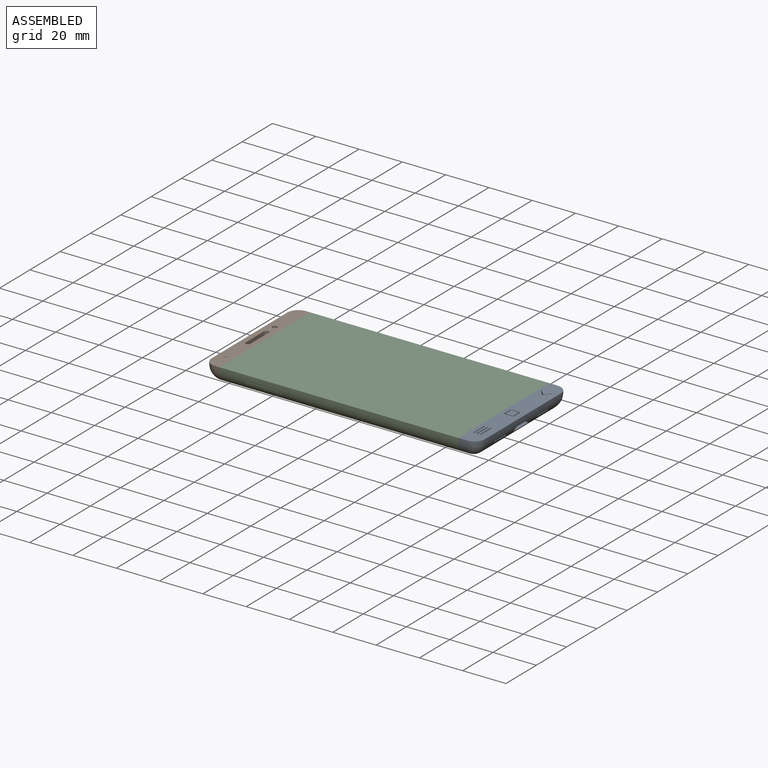
[diagram: assembled view]
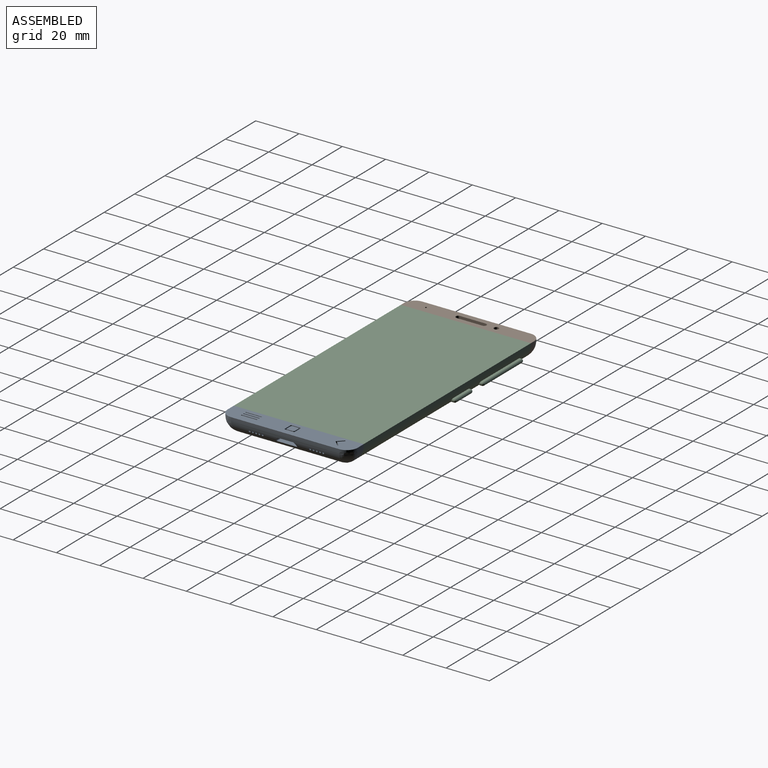
[diagram: assembled view, second angle]
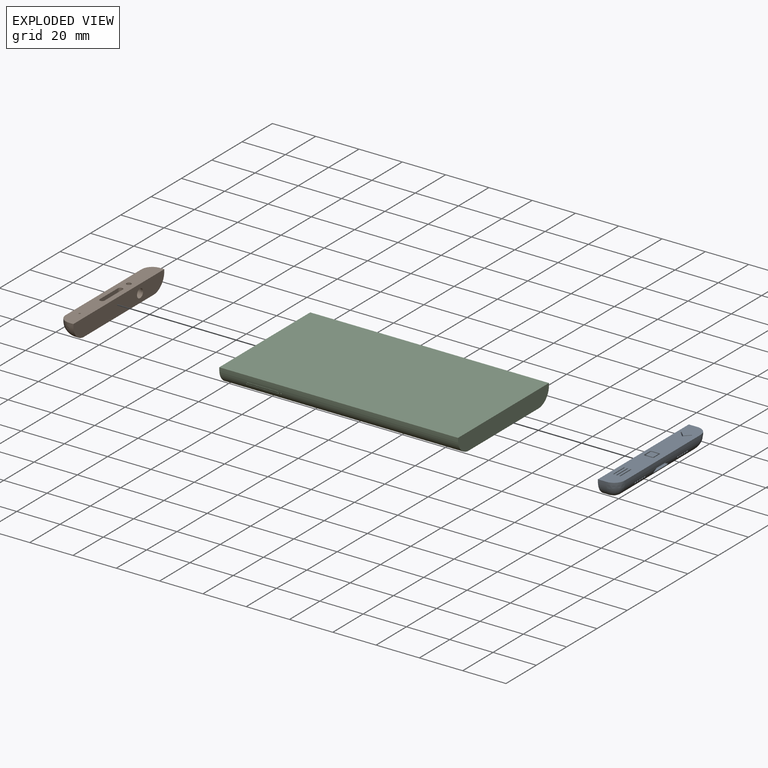
[diagram: exploded view]
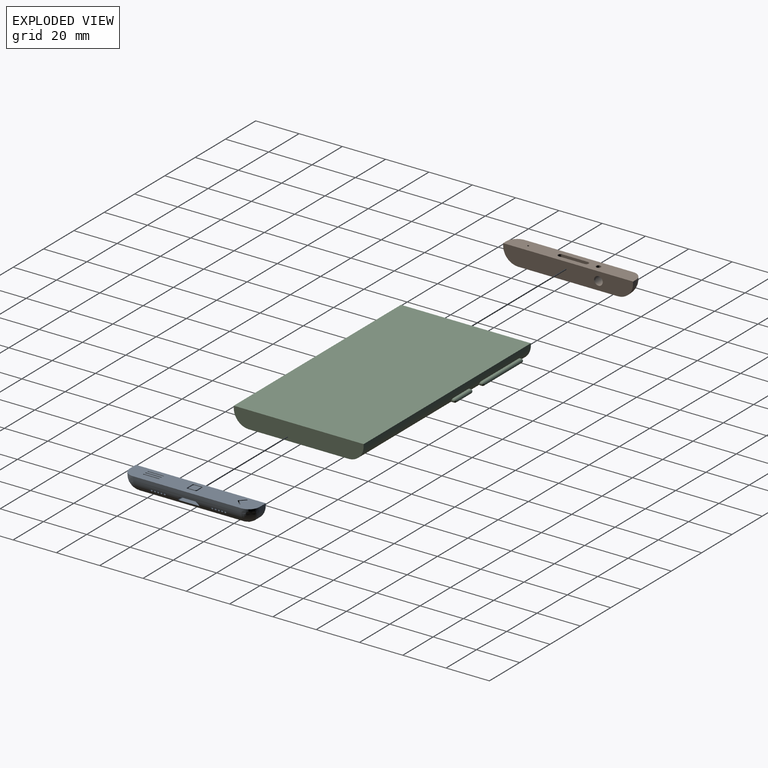
[diagram: exploded view, second angle]
ASSEMBLY  parts=3 mates=2
PART A: 86 faces, bbox 9x60x8.5 mm
  f0: plane 60x9mm, normal (0,0,1), area 494.3mm2, adj f35,f36,f37,f41,f43,f45,f46,f47
  f1: plane 8.91x1.3mm, normal (1,0,0), area 10.6mm2, adj f8,f10,f11,f12
  f2: plane 1x1mm, normal (1,0,0), area 0.8mm2, adj f18
  f3: plane 1x1mm, normal (1,0,0), area 0.8mm2, adj f19
  f4: plane 1x1mm, normal (1,0,0), area 0.8mm2, adj f20
  f5: plane 1x1mm, normal (1,0,0), area 0.8mm2, adj f21
  f6: plane 1x1mm, normal (1,0,0), area 0.8mm2, adj f22
  f7: sphere r=0.35mm, area 0.2mm2, adj f8,f12,f23
  f8: cylinder r=0.35mm len=8.91mm, axis (0,1,0), area 4.9mm2, adj f1,f7,f9,f24
  f9: sphere r=0.35mm, area 0.4mm2, adj f8,f10,f25
  f10: bspline ~2.06x1.6mm, area 1mm2, adj f1,f9,f11,f26
  f11: cylinder r=0.35mm len=7mm, axis (0,-1,0), area 3.8mm2, adj f1,f10,f12,f27
  f12: bspline ~2.06x1.6mm, area 1mm2, adj f1,f7,f11,f28
  f13: plane 1x1mm, normal (1,0,0), area 0.8mm2, adj f29
  f14: plane 1x1mm, normal (1,0,0), area 0.8mm2, adj f30
  f15: plane 1x1mm, normal (1,0,0), area 0.8mm2, adj f31
  f16: plane 1x1mm, normal (1,0,0), area 0.8mm2, adj f32
  f17: plane 1x1mm, normal (1,0,0), area 0.8mm2, adj f33
  f18: cylinder r=0.5mm len=2.54mm, axis (1,0,0), area 7.2mm2, adj f2,f34
  f19: cylinder r=0.5mm len=2.54mm, axis (1,0,0), area 7.2mm2, adj f3,f34
  f20: cylinder r=0.5mm len=2.54mm, axis (1,0,0), area 7.2mm2, adj f4,f34
  f21: cylinder r=0.5mm len=2.54mm, axis (1,0,0), area 7.2mm2, adj f5,f34
  f22: cylinder r=0.5mm len=2.54mm, axis (1,0,0), area 7.2mm2, adj f6,f34
  f23: cylinder r=0.35mm len=4.71mm, axis (1,0,0), area 3.2mm2, adj f7,f24,f28,f34
  f24: plane 8.91x4.39mm, normal (0,0,1), area 39.2mm2, adj f8,f23,f25,f34
  f25: cylinder r=0.35mm len=4.71mm, axis (1,0,0), area 3.2mm2, adj f9,f24,f26,f34
  f26: extruded ~5.36x1.5mm, area 10.4mm2, adj f10,f25,f27,f34
  f27: plane 7x5.36mm, normal (0,0,-1), area 37.5mm2, adj f11,f26,f28,f34
  f28: extruded ~5.36x1.5mm, area 10.4mm2, adj f12,f23,f27,f34
  f29: cylinder r=0.5mm len=2.54mm, axis (1,0,0), area 7.2mm2, adj f13,f34
  f30: cylinder r=0.5mm len=2.54mm, axis (1,0,0), area 7.2mm2, adj f14,f34
  f31: cylinder r=0.5mm len=2.54mm, axis (1,0,0), area 7.2mm2, adj f15,f34
  f32: cylinder r=0.5mm len=2.54mm, axis (1,0,0), area 7.2mm2, adj f16,f34
  f33: cylinder r=0.5mm len=2.54mm, axis (1,0,0), area 7.2mm2, adj f17,f34
  f34: cylinder r=7mm len=50mm, axis (0,1,0), area 506.1mm2, adj f18,f19,f20,f21,f22,f23,f24,f25
  f35: cylinder r=5mm len=5mm, axis (0,0,-1), area 7.9mm2, adj f0,f36,f38,f41
  f36: plane 50x1mm, normal (1,0,0), area 50mm2, adj f0,f34,f35,f37
  f37: cylinder r=5mm len=5mm, axis (0,0,-1), area 7.9mm2, adj f0,f36,f39,f43
  f38: bspline ~8.55x7mm, area 56.6mm2, adj f34,f35,f40
  f39: bspline ~8.55x7mm, area 56.6mm2, adj f34,f37,f42
  f40: cylinder r=7mm len=7mm, axis (-1,0,0), area 36mm2, adj f38,f41,f44,f45
  f41: plane 4x1mm, normal (0,1,0), area 4mm2, adj f0,f35,f40,f45
  f42: cylinder r=7mm len=7mm, axis (1,0,0), area 36mm2, adj f39,f43,f44,f45
  f43: plane 4x1mm, normal (0,-1,0), area 4mm2, adj f0,f37,f42,f45
  f44: plane 46x2mm, normal (0,0,-1), area 92mm2, adj f34,f40,f42,f45
  f45: plane 60x8mm, normal (-1,0,0), area 459mm2, adj f0,f40,f41,f42,f43,f44
  f46: cylinder r=0.22mm len=2mm, axis (0,0,1), area 1.4mm2, adj f0,f47,f49,f50
  f47: plane 7x2mm, normal (1,0,0), area 14mm2, adj f0,f46,f48,f50
  f48: cylinder r=0.22mm len=2mm, axis (0,0,1), area 1.4mm2, adj f0,f47,f49,f50
  f49: plane 7x2mm, normal (-1,0,0), area 14mm2, adj f0,f46,f48,f50
  f50: plane 7.44x0.44mm, normal (0,0,1), area 3.3mm2, adj f46,f47,f48,f49
  f51: cylinder r=0.25mm len=2mm, axis (0,0,1), area 1.6mm2, adj f0,f52,f54,f55
  f52: plane 7x2mm, normal (1,0,0), area 14mm2, adj f0,f51,f53,f55
  f53: cylinder r=0.25mm len=2mm, axis (0,0,1), area 1.6mm2, adj f0,f52,f54,f55
  f54: plane 7x2mm, normal (-1,0,0), area 14mm2, adj f0,f51,f53,f55
  f55: plane 7.5x0.5mm, normal (0,0,1), area 3.7mm2, adj f51,f52,f53,f54
  f56: cylinder r=0.25mm len=2mm, axis (0,0,1), area 1.6mm2, adj f0,f57,f59,f60
  f57: plane 7x2mm, normal (1,0,0), area 14mm2, adj f0,f56,f58,f60
  f58: cylinder r=0.25mm len=2mm, axis (0,0,1), area 1.6mm2, adj f0,f57,f59,f60
  f59: plane 7x2mm, normal (-1,0,0), area 14mm2, adj f0,f56,f58,f60
  f60: plane 7.5x0.5mm, normal (0,0,1), area 3.7mm2, adj f56,f57,f58,f59
  f61: cylinder r=0.22mm len=2mm, axis (0,0,1), area 1.4mm2, adj f0,f62,f66,f67
  f62: plane 2.54x2.54mm, normal (0.71,0.71,0), area 7.2mm2, adj f0,f61,f63,f67
  f63: plane 2.54x2.54mm, normal (-0.71,0.71,0), area 7.2mm2, adj f0,f62,f64,f67
  f64: cylinder r=0.22mm len=2mm, axis (0,0,1), area 1.4mm2, adj f0,f63,f65,f67
  f65: plane 2.23x2.23mm, normal (0.71,-0.71,0), area 6.3mm2, adj f0,f64,f66,f67
  f66: plane 2.23x2.23mm, normal (-0.71,-0.71,0), area 6.3mm2, adj f0,f61,f65,f67
  f67: plane 5.22x2.92mm, normal (0,0,1), area 3.2mm2, adj f61,f62,f63,f64,f65,f66
  f68: plane 3.55x2mm, normal (0,-1,0), area 7.1mm2, adj f0,f69,f83,f84
  f69: cylinder r=0.5mm len=2mm, axis (0,0,1), area 1.6mm2, adj f0,f68,f70,f84
  f70: plane 3.71x2mm, normal (1,0,0), area 7.4mm2, adj f0,f69,f71,f84
  f71: cylinder r=0.5mm len=2mm, axis (0,0,1), area 1.6mm2, adj f0,f70,f72,f84
  f72: plane 3.55x2mm, normal (0,1,0), area 7.1mm2, adj f0,f71,f73,f84
  f73: cylinder r=0.5mm len=2mm, axis (0,0,1), area 1.6mm2, adj f0,f72,f74,f84
  f74: plane 3.71x2mm, normal (-1,0,0), area 7.4mm2, adj f0,f73,f83,f84
  f75: cylinder r=0.5mm len=2mm, axis (0,0,1), area 1.6mm2, adj f76,f82,f84,f85
  f76: plane 2.71x2mm, normal (-1,0,0), area 5.4mm2, adj f75,f77,f84,f85
  f77: cylinder r=0.5mm len=2mm, axis (0,0,1), area 1.6mm2, adj f76,f78,f84,f85
  f78: plane 2.55x2mm, normal (0,1,0), area 5.1mm2, adj f77,f79,f84,f85
  f79: cylinder r=0.5mm len=2mm, axis (0,0,1), area 1.6mm2, adj f78,f80,f84,f85
  f80: plane 2.71x2mm, normal (1,0,0), area 5.4mm2, adj f79,f81,f84,f85
  f81: cylinder r=0.5mm len=2mm, axis (0,0,1), area 1.6mm2, adj f80,f82,f84,f85
  f82: plane 2.55x2mm, normal (0,-1,0), area 5.1mm2, adj f75,f81,f84,f85
  f83: cylinder r=0.5mm len=2mm, axis (0,0,1), area 1.6mm2, adj f0,f68,f74,f84
  f84: plane 4.71x4.55mm, normal (0,0,1), area 8.3mm2, adj f68,f69,f70,f71,f72,f73,f74,f75
  f85: plane 3.71x3.55mm, normal (0,0,1), area 12.9mm2, adj f75,f76,f77,f78,f79,f80,f81,f82
PART B: 28 faces, bbox 7x60x8.5 mm
  f0: plane 60x7mm, normal (0,0,1), area 374.9mm2, adj f8,f9,f10,f16,f17,f18,f19,f20
  f1: plane 1x1mm, normal (-1,0,0), area 0.8mm2, adj f3
  f2: plane 3x3mm, normal (-1,0,0), area 7.1mm2, adj f4
  f3: cylinder r=0.5mm len=1.54mm, axis (-1,0,0), area 4.1mm2, adj f1,f12
  f4: cylinder r=1.5mm len=3mm, axis (-1,0,0), area 9.1mm2, adj f2,f12
  f5: plane 5x5mm, normal (-1,0,0), area 7.1mm2, adj f6,f7
  f6: cylinder r=2mm len=4mm, axis (-1,0,0), area 12.6mm2, adj f5,f18
  f7: cylinder r=2.5mm len=5.98mm, axis (-1,0,0), area 78.5mm2, adj f5,f12
  f8: cylinder r=5mm len=5mm, axis (0,0,-1), area 7.9mm2, adj f0,f9,f13,f17
  f9: plane 50x1mm, normal (-1,0,0), area 50mm2, adj f0,f8,f10,f12
  f10: cylinder r=5mm len=5mm, axis (0,0,-1), area 7.9mm2, adj f0,f9,f11,f16
  f11: bspline ~8.55x7mm, area 56.6mm2, adj f10,f12,f15
  f12: cylinder r=7mm len=50mm, axis (0,-1,0), area 502.4mm2, adj f3,f4,f7,f9,f11,f13,f18
  f13: bspline ~8.55x7mm, area 56.6mm2, adj f8,f12,f14
  f14: cylinder r=7mm len=7mm, axis (1,0,0), area 14mm2, adj f13,f17,f18
  f15: cylinder r=7mm len=7mm, axis (-1,0,0), area 14mm2, adj f11,f16,f18
  f16: plane 2x1mm, normal (0,1,0), area 2mm2, adj f0,f10,f15,f18
  f17: plane 2x1mm, normal (0,-1,0), area 2mm2, adj f0,f8,f14,f18
  f18: plane 60x8mm, normal (1,0,0), area 446.4mm2, adj f0,f6,f12,f14,f15,f16,f17
  f19: cylinder r=1.09mm len=2.19mm, axis (0,0,1), area 6.9mm2, adj f0,f20,f22,f23
  f20: plane 12x2mm, normal (1,0,0), area 24mm2, adj f0,f19,f21,f23
  f21: cylinder r=1.09mm len=2.19mm, axis (0,0,1), area 6.9mm2, adj f0,f20,f22,f23
  f22: plane 12x2mm, normal (-1,0,0), area 24mm2, adj f0,f19,f21,f23
  f23: plane 14.19x2.19mm, normal (0,0,1), area 30mm2, adj f19,f20,f21,f22
  f24: cylinder r=1.09mm len=2.19mm, axis (0,0,1), area 6.9mm2, adj f0,f25
  f25: plane 2.19x2.19mm, normal (0,0,1), area 3.8mm2, adj f24
  f26: cylinder r=0.42mm len=0.84mm, axis (0,0,1), area 1.3mm2, adj f0,f27
  f27: plane 0.84x0.84mm, normal (0,0,1), area 0.6mm2, adj f26
PART C: 63 faces, bbox 110.3x61x8 mm
  f0: cylinder r=7mm len=110.29mm, axis (1,0,0), area 1193.6mm2, adj f2,f3,f23,f24,f47,f48,f49,f50
  f1: cylinder r=7mm len=110.29mm, axis (-1,0,0), area 1177.8mm2, adj f2,f4,f23,f24,f27,f29,f30,f32
  f2: plane 110.29x46mm, normal (0,0,-1), area 4907.2mm2, adj f0,f1,f6,f8,f10,f11,f12,f13
  f3: plane 110.29x1mm, normal (0,-1,0), area 110.3mm2, adj f0,f5,f23,f24
  f4: plane 110.29x1mm, normal (0,1,0), area 110.3mm2, adj f1,f5,f23,f24
  f5: plane 110.29x60mm, normal (0,0,1), area 6617.5mm2, adj f3,f4,f23,f24
  f6: cylinder r=5mm len=10mm, axis (0,0,-1), area 23.6mm2, adj f2,f7
  f7: plane 10x10mm, normal (0,0,-1), area 78.5mm2, adj f6
  f8: cylinder r=5mm len=10mm, axis (0,0,-1), area 23.6mm2, adj f2,f9
  f9: plane 10x10mm, normal (0,0,-1), area 78.5mm2, adj f8
  f10: plane 3.01x3mm, normal (-1,0,0), area 9mm2, adj f2,f11,f13,f14
  f11: cylinder r=1mm len=3mm, axis (0,0,-1), area 9.4mm2, adj f2,f10,f12,f14
  f12: plane 3x3mm, normal (1,0,0), area 9mm2, adj f2,f11,f13,f14
  f13: cylinder r=1mm len=3mm, axis (0,0,-1), area 9.4mm2, adj f2,f10,f12,f14
  f14: plane 5x2mm, normal (0,0,-1), area 5.6mm2, adj f10,f11,f12,f13,f16,f19
  f15: cylinder r=0.62mm len=3mm, axis (0,0,-1), area 11.8mm2, adj f17,f18
  f16: cylinder r=0.75mm len=3mm, axis (0,0,-1), area 14.1mm2, adj f14,f17
  f17: plane 1.5x1.5mm, normal (0,0,-1), area 0.5mm2, adj f15,f16
  f18: plane 1.25x1.25mm, normal (0,0,-1), area 1.2mm2, adj f15
  f19: cylinder r=0.75mm len=3mm, axis (0,0,-1), area 14.1mm2, adj f14,f21
  f20: cylinder r=0.62mm len=3mm, axis (0,0,-1), area 11.8mm2, adj f21,f22
  f21: plane 1.5x1.5mm, normal (0,0,-1), area 0.5mm2, adj f19,f20
  f22: plane 1.25x1.25mm, normal (0,0,-1), area 1.2mm2, adj f20
  f23: plane 60x8mm, normal (1,0,0), area 459mm2, adj f0,f1,f2,f3,f4,f5
  f24: plane 60x8mm, normal (-1,0,0), area 446.4mm2, adj f0,f1,f2,f3,f4,f5,f26
  f25: plane 4x4mm, normal (-1,0,0), area 12.6mm2, adj f26
  f26: cylinder r=2mm len=4.9mm, axis (-1,0,0), area 61.6mm2, adj f24,f25
  f27: cylinder r=0.88mm len=1.75mm, axis (0,-1,0), area 2.7mm2, adj f1,f28,f30,f32,f43
  f28: plane 25x1.13mm, normal (0,0,-1), area 28.1mm2, adj f27,f29,f32,f44
  f29: cylinder r=0.88mm len=1.75mm, axis (0,-1,0), area 2.7mm2, adj f1,f28,f30,f32,f46
  f30: plane 25x0.7mm, normal (0,0,1), area 17.6mm2, adj f1,f27,f29,f45
  f31: plane 25x0mm, normal (0,1,0), area 0.1mm2, adj f43,f44,f45,f46
  f32: plane 26.75x0.93mm, normal (0,-1,0), area 24.6mm2, adj f1,f27,f28,f29
  f33: plane 10x1.13mm, normal (0,0,-1), area 11.2mm2, adj f34,f36,f38,f39
  f34: cylinder r=0.88mm len=1.75mm, axis (0,-1,0), area 2.7mm2, adj f1,f33,f35,f38,f40
  f35: plane 10x0.7mm, normal (0,0,1), area 7mm2, adj f1,f34,f36,f42
  f36: cylinder r=0.88mm len=1.75mm, axis (0,-1,0), area 2.7mm2, adj f1,f33,f35,f38,f41
  f37: plane 10x0mm, normal (0,1,0), area 0mm2, adj f39,f40,f41,f42
  f38: plane 11.75x0.93mm, normal (0,-1,0), area 10.6mm2, adj f1,f33,f34,f36
  f39: cylinder r=0.88mm len=10mm, axis (1,0,0), area 13.7mm2, adj f33,f37,f40,f41
  f40: torus R=0mm, axis (0,1,0), area 2.4mm2, adj f34,f37,f39,f42
  f41: torus R=0mm, axis (0,1,0), area 2.4mm2, adj f36,f37,f39,f42
  f42: cylinder r=0.88mm len=10mm, axis (-1,0,0), area 13.7mm2, adj f35,f37,f40,f41
  f43: torus R=0mm, axis (0,1,0), area 2.4mm2, adj f27,f31,f44,f45
  f44: cylinder r=0.88mm len=25mm, axis (1,0,0), area 34.4mm2, adj f28,f31,f43,f46
  f45: cylinder r=0.88mm len=25mm, axis (-1,0,0), area 34.4mm2, adj f30,f31,f43,f46
  f46: torus R=0mm, axis (0,1,0), area 2.4mm2, adj f29,f31,f44,f45
  f47: plane 2.52x0.18mm, normal (1,0,0), area 0.5mm2, adj f0,f48,f58,f59
  f48: cylinder r=0.5mm len=2.45mm, axis (0,-1,0), area 1.8mm2, adj f0,f47,f49,f59
  f49: plane 14x2.21mm, normal (0,0,1), area 31mm2, adj f0,f48,f50,f59
  f50: cylinder r=0.5mm len=2.45mm, axis (0,-1,0), area 1.8mm2, adj f0,f49,f51,f59
  f51: plane 2.52x0.18mm, normal (-1,0,0), area 0.5mm2, adj f0,f50,f52,f59
  f52: cylinder r=0.5mm len=2.69mm, axis (0,-1,0), area 2mm2, adj f0,f51,f53,f59
  f53: plane 14x2.69mm, normal (0,0,-1), area 37.7mm2, adj f0,f52,f58,f59
  f54: cylinder r=0.55mm len=2.66mm, axis (0,-1,0), area 3mm2, adj f55,f57,f59,f60
  f55: plane 13.96x2.66mm, normal (0,0,1), area 37.2mm2, adj f54,f56,f59,f60
  f56: cylinder r=0.49mm len=2.66mm, axis (0,-1,0), area 3.8mm2, adj f55,f57,f59,f60
  f57: plane 13.85x2.26mm, normal (0,0,-1), area 31.3mm2, adj f54,f56,f59,f60
  f58: cylinder r=0.5mm len=2.69mm, axis (0,-1,0), area 2mm2, adj f0,f47,f53,f59
  f59: plane 15x1.18mm, normal (0,-1,0), area 3.3mm2, adj f47,f48,f49,f50,f51,f52,f53,f54
  f60: cylinder r=7mm len=14.7mm, axis (1,0,0), area 15.4mm2, adj f54,f55,f56,f57
  f61: cylinder r=0.25mm len=4.57mm, axis (0,-1,0), area 7mm2, adj f0,f62
  f62: plane 0.5x0.5mm, normal (0,-1,0), area 0.2mm2, adj f61
PLACE A t=(-2.79,1.94,1.98)mm
PLACE B t=(-2.59,1.94,1.98)mm
PLACE C t=(-2.69,1.94,1.98)mm fixed
MATE fastened C.f24 <-> B.f18  axis (-1,0,0) through (-58.83,1.54,6.1)mm
MATE fastened C.f23 <-> A.f45  axis (1,0,0) through (51.46,1.94,6.09)mm
